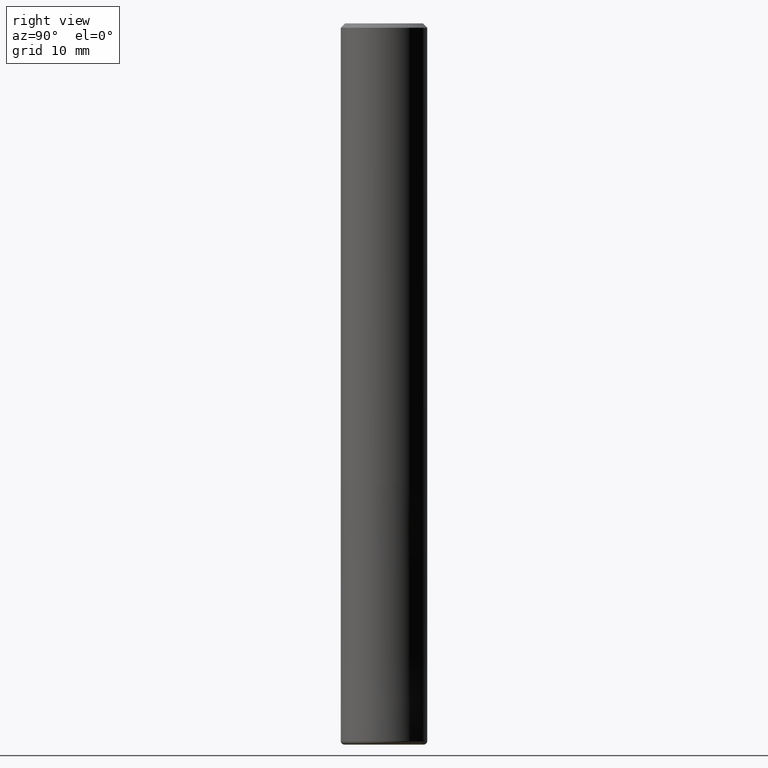
[diagram: clean part render]
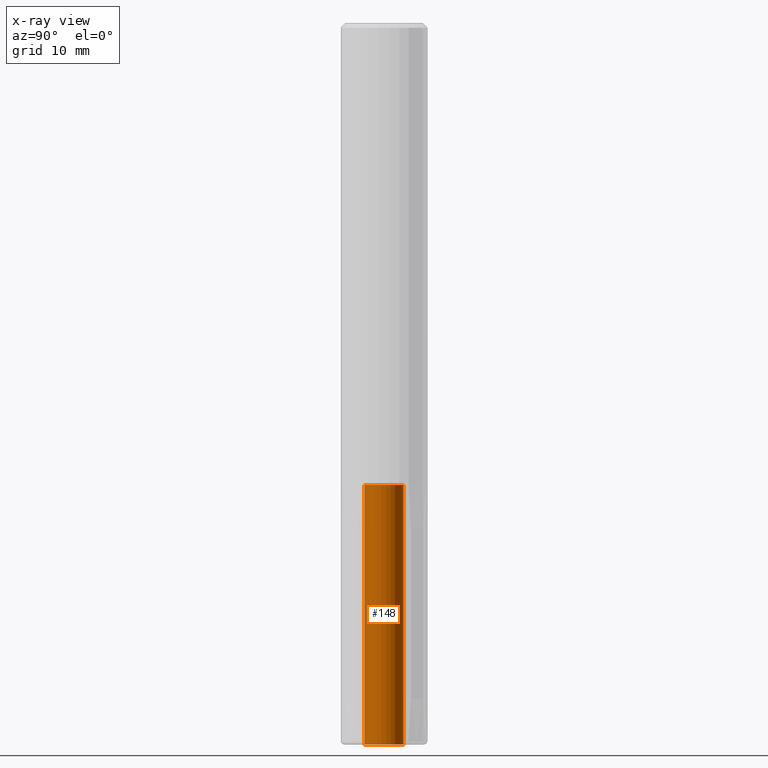
[diagram: x-ray — body ghosted, one internal face saturated and labeled with its STEP entity id]
A machine part, right view, then the same camera in x-ray: the body is ghosted and one INTERNAL B-rep face — a face not visible from any outside direction — is saturated and labeled: STEP entity #148.
In plain terms, the highlighted cylindrical surface (edge-blend (fillet) strip) has radius 2.7 mm, axis along (-0, -0, 1).
Its self-contained STEP definition (entity closure, byte-faithful):
#130=EDGE_CURVE('',#150,#154,#293,.T.);
#136=EDGE_CURVE('',#240,#154,#299,.T.);
#148=ADVANCED_FACE('',(#312),#313,.F.);
#150=VERTEX_POINT('',#315);
#154=VERTEX_POINT('',#319);
#200=EDGE_CURVE('',#212,#150,#371,.T.);
#204=EDGE_CURVE('',#240,#212,#375,.T.);
#212=VERTEX_POINT('',#384);
#240=VERTEX_POINT('',#419);
#293=LINE('',#474,#475);
#299=CIRCLE('',#484,2.7);
#312=FACE_OUTER_BOUND('',#503,.T.);
#313=CYLINDRICAL_SURFACE('',#504,2.7);
#315=CARTESIAN_POINT('',(3.30643715532042E-016,-2.7,-100.0));
#319=CARTESIAN_POINT('',(3.30643715532042E-016,-2.7,-64.0));
#371=CIRCLE('',#576,2.7);
#375=LINE('',#582,#583);
#384=CARTESIAN_POINT('',(0.0,2.7,-100.0));
#419=CARTESIAN_POINT('',(0.0,2.7,-64.0));
#474=CARTESIAN_POINT('',(3.30643715532042E-016,-2.7,-82.0));
#475=VECTOR('',#677,1.0);
#484=AXIS2_PLACEMENT_3D('',#679,#680,#681);
#503=EDGE_LOOP('',(#699,#700,#701,#702));
#504=AXIS2_PLACEMENT_3D('',#703,#704,#705);
#576=AXIS2_PLACEMENT_3D('',#766,#767,#768);
#582=CARTESIAN_POINT('',(-3.30643715532042E-016,2.7,-82.0));
#583=VECTOR('',#772,1.0);
#677=DIRECTION('',(0.0,-0.0,1.0));
#679=CARTESIAN_POINT('',(0.0,0.0,-64.0));
#680=DIRECTION('',(0.0,0.0,-1.0));
#681=DIRECTION('',(0.0,1.0,0.0));
#699=ORIENTED_EDGE('',*,*,#204,.T.);
#700=ORIENTED_EDGE('',*,*,#200,.T.);
#701=ORIENTED_EDGE('',*,*,#130,.T.);
#702=ORIENTED_EDGE('',*,*,#136,.F.);
#703=CARTESIAN_POINT('',(0.0,0.0,-82.0));
#704=DIRECTION('',(-0.0,-0.0,1.0));
#705=DIRECTION('',(0.0,1.0,0.0));
#766=CARTESIAN_POINT('',(0.0,0.0,-100.0));
#767=DIRECTION('',(0.0,0.0,-1.0));
#768=DIRECTION('',(0.0,1.0,0.0));
#772=DIRECTION('',(0.0,-0.0,-1.0));